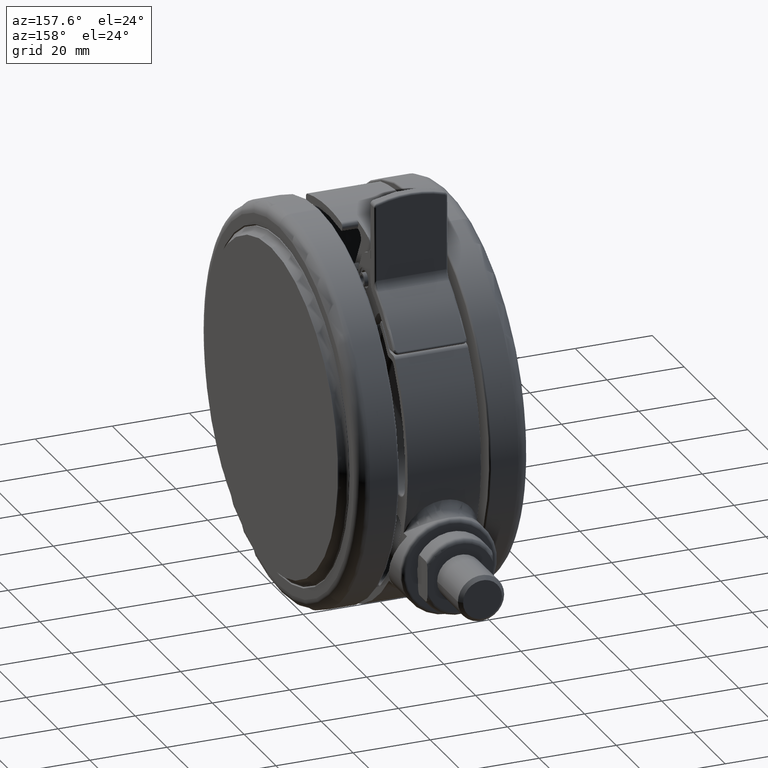
[diagram: clean part render]
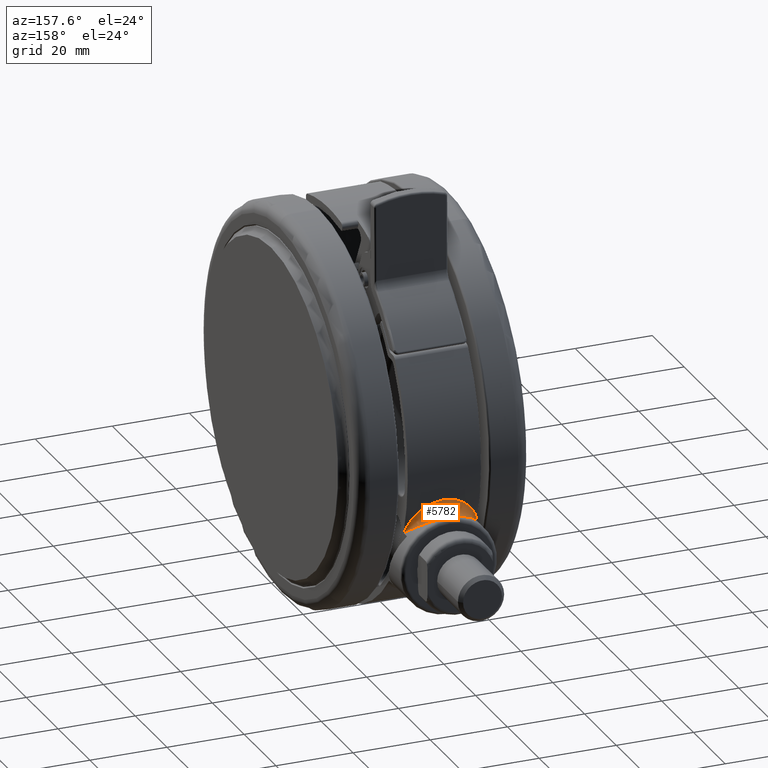
[diagram: same view with one face highlighted and labeled with its STEP entity id]
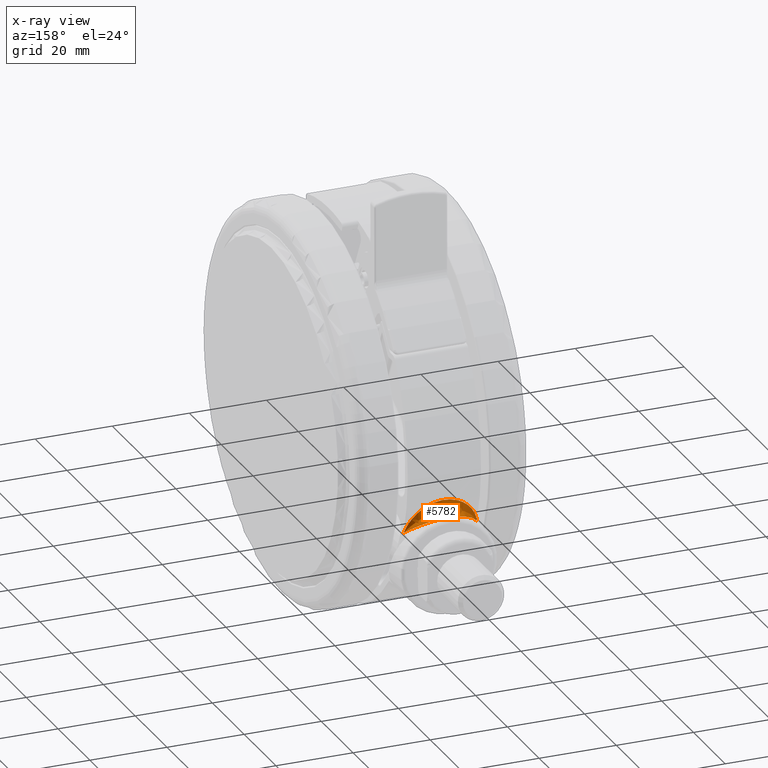
[diagram: x-ray of the same camera — body ghosted, the highlighted face saturated]
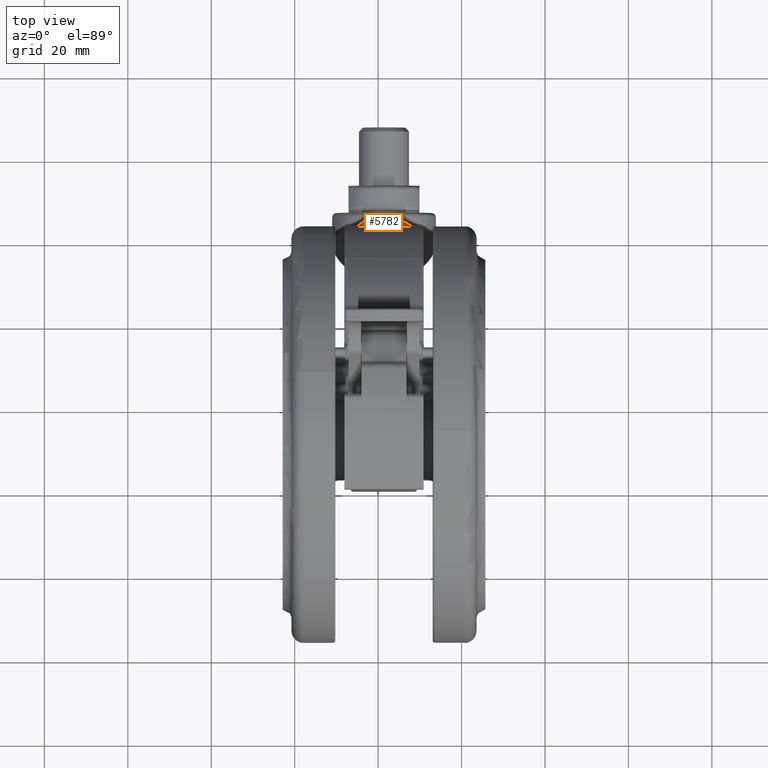
[diagram: same view with one face highlighted and labeled with its STEP entity id]
A machine part, auxiliary view. The second image highlights one B-rep face of the part: STEP entity #5782.
The next image is the same camera in x-ray: the body ghosted, the highlighted face saturated — about 0% of this face is hidden behind the body in this view.
A second angle (top view) of the same face is appended — the face is thin or edge-on in the first view.
In plain terms, the highlighted face is a freeform B-spline surface patch.
Its self-contained STEP definition (entity closure, byte-faithful):
#13 = CARTESIAN_POINT ( 'NONE',  ( -11.69894955959421300, -48.72257818569204300, -26.56930081837448700 ) ) ;
#193 = CARTESIAN_POINT ( 'NONE',  ( -13.92459439986693500, -49.63091264937349900, -16.88928148163575200 ) ) ;
#334 = CARTESIAN_POINT ( 'NONE',  ( -14.04333610865144200, -49.48957025476126100, -31.85810882457602800 ) ) ;
#360 = CARTESIAN_POINT ( 'NONE',  ( -11.71877487653341500, -52.06191361083290300, -26.67602985050812600 ) ) ;
#489 = CARTESIAN_POINT ( 'NONE',  ( -12.56770290114753400, -51.11979242885560400, -29.36035146459909500 ) ) ;
#1302 = CARTESIAN_POINT ( 'NONE',  ( -11.71496968621212500, -52.06676256314960200, -21.93982029699283800 ) ) ;
#1338 = ORIENTED_EDGE ( 'NONE', *, *, #12191, .F. ) ;
#1472 = CARTESIAN_POINT ( 'NONE',  ( -12.94386997800127400, -50.71069343732430200, -18.46608445041886200 ) ) ;
#1634 = CARTESIAN_POINT ( 'NONE',  ( -15.24687865362074400, -48.13344829595043000, -15.36702184867200500 ) ) ;
#2551 = CARTESIAN_POINT ( 'NONE',  ( -15.87596159536404400, -47.41259161259300500, -14.79999999999995100 ) ) ;
#2714 = CARTESIAN_POINT ( 'NONE',  ( -12.23713080903154800, -48.47954070428588100, -16.36540159506102700 ) ) ;
#2884 = CARTESIAN_POINT ( 'NONE',  ( -9.732566719437031100, -49.04374208781965200, -18.85689690082477900 ) ) ;
#3046 = CARTESIAN_POINT ( 'NONE',  ( -8.355177393604634500, -49.29698517889038800, -21.81060116089880900 ) ) ;
#3215 = CARTESIAN_POINT ( 'NONE',  ( -8.312355723238402700, -49.30427625043405000, -26.63792995606967700 ) ) ;
#3353 = CARTESIAN_POINT ( 'NONE',  ( -11.26193435889563500, -48.71720170788730500, -17.11327036598812200 ) ) ;
#3370 = CARTESIAN_POINT ( 'NONE',  ( -9.605146744520169500, -49.06897655943481600, -29.55040244303826900 ) ) ;
#3505 = CARTESIAN_POINT ( 'NONE',  ( -9.722570157017195000, -49.05165460912599700, -29.82981517340078900 ) ) ;
#3537 = CARTESIAN_POINT ( 'NONE',  ( -12.60934466368321000, -48.38419553531554800, -32.47167288838864600 ) ) ;
#3677 = CARTESIAN_POINT ( 'NONE',  ( -13.06327831876326200, -48.29893043449940400, -18.22513518628305800 ) ) ;
#3705 = CARTESIAN_POINT ( 'NONE',  ( -14.90825335206542100, -47.72821061239162100, -33.54405484507405800 ) ) ;
#3849 = CARTESIAN_POINT ( 'NONE',  ( -12.28138429567061800, -48.53842614323701100, -28.74726169468716500 ) ) ;
#4003 = CARTESIAN_POINT ( 'NONE',  ( -13.18919661153685400, -50.44099948665370200, -18.00878122102804100 ) ) ;
#4134 = CARTESIAN_POINT ( 'NONE',  ( -13.95260713755128100, -49.59116632456275700, -31.73644243655735800 ) ) ;
#4158 = CARTESIAN_POINT ( 'NONE',  ( -12.35657142087371500, -51.35004324201640500, -28.94091243946785100 ) ) ;
#4300 = CARTESIAN_POINT ( 'NONE',  ( -12.30025125845968300, -51.41416647566705200, -28.70695115752583200 ) ) ;
#5127 = CARTESIAN_POINT ( 'NONE',  ( -11.84011506767321400, -51.92794611493748400, -21.40379031166991900 ) ) ;
#5279 = CARTESIAN_POINT ( 'NONE',  ( -13.30404741046894700, -50.31547237914458000, -17.82724679447087400 ) ) ;
#5440 = CARTESIAN_POINT ( 'NONE',  ( -15.87596159536404400, -47.41259161259300500, -14.79999999999995100 ) ) ;
#5782 = ADVANCED_FACE ( 'NONE', ( #46294 ), #14597, .T. ) ;
#6373 = CARTESIAN_POINT ( 'NONE',  ( -14.87000690518328500, -47.74020521104201700, -15.06531160233777900 ) ) ;
#6526 = CARTESIAN_POINT ( 'NONE',  ( -11.91106185796878600, -48.56067353279153300, -16.59974122800459600 ) ) ;
#6694 = CARTESIAN_POINT ( 'NONE',  ( -9.537214629438711500, -49.08200374227934800, -19.15264525107448900 ) ) ;
#6864 = CARTESIAN_POINT ( 'NONE',  ( -8.248309205127165800, -49.31497360007483600, -22.23948520582682400 ) ) ;
#6991 = CARTESIAN_POINT ( 'NONE',  ( -14.92623078096261600, -47.73060607715920200, -15.01745032161541200 ) ) ;
#7019 = CARTESIAN_POINT ( 'NONE',  ( -8.501709769612183700, -49.27195014164438200, -27.27388059187315200 ) ) ;
#7162 = CARTESIAN_POINT ( 'NONE',  ( -9.731473301614384400, -49.04982101814410800, -18.74926271114094000 ) ) ;
#7185 = CARTESIAN_POINT ( 'NONE',  ( -10.02032244934062700, -48.98571902529922500, -30.12778448271095400 ) ) ;
#7323 = CARTESIAN_POINT ( 'NONE',  ( -11.26045484034769300, -48.71751336387360000, -31.48367110619636800 ) ) ;
#7342 = CARTESIAN_POINT ( 'NONE',  ( -12.92148500888368200, -48.30152091922038000, -32.65572641968056900 ) ) ;
#7389 = VERTEX_POINT ( 'NONE', #23598 ) ;
#7482 = CARTESIAN_POINT ( 'NONE',  ( -12.28854762439137000, -48.53650204631259200, -19.83575079229146400 ) ) ;
#7497 = CARTESIAN_POINT ( 'NONE',  ( -15.87596159536404800, -47.41259161259300500, -33.79999999999994700 ) ) ;
#7631 = CARTESIAN_POINT ( 'NONE',  ( -13.06208013118732800, -48.29925234463334500, -30.37233565374528900 ) ) ;
#7792 = CARTESIAN_POINT ( 'NONE',  ( -12.36447117563347600, -51.34812842374229500, -19.64129289126812900 ) ) ;
#7933 = CARTESIAN_POINT ( 'NONE',  ( -13.87006486777141000, -49.68350579136884400, -31.62392383936940400 ) ) ;
#7956 = CARTESIAN_POINT ( 'NONE',  ( -13.18787941922449600, -50.44132482632141300, -30.58858709497935300 ) ) ;
#8103 = CARTESIAN_POINT ( 'NONE',  ( -12.07060582586896800, -51.66855855892639900, -28.04082957094923100 ) ) ;
#8908 = CARTESIAN_POINT ( 'NONE',  ( -11.87415706030120600, -51.89020425943805000, -21.26359312755701900 ) ) ;
#9074 = CARTESIAN_POINT ( 'NONE',  ( -13.91721893550443700, -49.63917646210447300, -16.89873617722571100 ) ) ;
#10142 = CARTESIAN_POINT ( 'NONE',  ( -13.81252283401269500, -48.05528693359809700, -15.47853473350856000 ) ) ;
#10323 = CARTESIAN_POINT ( 'NONE',  ( -11.47433446817963300, -48.66610014546562700, -16.94337545923290000 ) ) ;
#10493 = CARTESIAN_POINT ( 'NONE',  ( -9.308132508066428600, -49.12619597347290300, -19.52048931387566500 ) ) ;
#10645 = CARTESIAN_POINT ( 'NONE',  ( -8.076061289403698500, -49.34359494985753300, -23.11399999178327000 ) ) ;
#10818 = CARTESIAN_POINT ( 'NONE',  ( -8.626282406765575700, -49.25025803934271100, -27.62137122240734400 ) ) ;
#10954 = CARTESIAN_POINT ( 'NONE',  ( -8.466922184788623800, -49.27838215784530000, -21.37859359223575200 ) ) ;
#10975 = CARTESIAN_POINT ( 'NONE',  ( -10.31147876870526400, -48.92522188995408800, -30.48792301766544500 ) ) ;
#11109 = CARTESIAN_POINT ( 'NONE',  ( -12.56581440002579500, -48.39760967478000700, -32.45872537504006100 ) ) ;
#11134 = CARTESIAN_POINT ( 'NONE',  ( -12.99686256038361200, -48.28127802616094000, -32.69827883304446200 ) ) ;
#11266 = CARTESIAN_POINT ( 'NONE',  ( -11.69956199842898700, -48.72242174444337300, -22.02642232607604500 ) ) ;
#11419 = CARTESIAN_POINT ( 'NONE',  ( -15.87596159536404800, -47.41259161259300500, -33.79999999999994700 ) ) ;
#11443 = CARTESIAN_POINT ( 'NONE',  ( -13.77257087980995600, -48.08233822477019000, -31.50449683879090700 ) ) ;
#11605 = CARTESIAN_POINT ( 'NONE',  ( -11.71944669914193500, -52.06177854349159900, -21.91949538303779100 ) ) ;
#11735 = CARTESIAN_POINT ( 'NONE',  ( -13.53786252425319100, -50.05369773256683900, -31.14415036155773800 ) ) ;
#11754 = CARTESIAN_POINT ( 'NONE',  ( -13.91527021464021600, -49.63357968840340100, -31.69802064135370000 ) ) ;
#11892 = CARTESIAN_POINT ( 'NONE',  ( -11.94116931008725000, -51.81279284159317200, -27.59363480515344200 ) ) ;
#12191 = EDGE_CURVE ( 'NONE', #18308, #7389, #21223, .T. ) ;
#12702 = CARTESIAN_POINT ( 'NONE',  ( -12.03270311118254600, -51.71462763008992900, -20.67673076583624700 ) ) ;
#12859 = CARTESIAN_POINT ( 'NONE',  ( -14.20315738760782100, -49.31826586636828600, -16.53649438928169200 ) ) ;
#13932 = CARTESIAN_POINT ( 'NONE',  ( -13.22791425003091500, -48.21854316301063600, -15.76811022344935500 ) ) ;
#14094 = CARTESIAN_POINT ( 'NONE',  ( -10.96234566935812700, -48.78358005740575000, -17.41041749162037200 ) ) ;
#14258 = CARTESIAN_POINT ( 'NONE',  ( -8.971389277907214000, -49.18860172343679000, -20.16309993510730400 ) ) ;
#14426 = CARTESIAN_POINT ( 'NONE',  ( -8.018662412042557400, -49.35282213983835900, -24.58414942972734700 ) ) ;
#14594 = CARTESIAN_POINT ( 'NONE',  ( -8.785222561514233400, -49.22226507604543900, -28.02845073513601500 ) ) ;
#14597 =( BOUNDED_SURFACE ( )  B_SPLINE_SURFACE ( 2, 3, ( 
 ( #37160, #6991, #22154, #48527, #25932, #3353, #29735, #7162, #33492, #10954, #37325, #14722, #41109, #18526, #44893, #22319, #48710, #26089, #3505, #29910, #7323, #33651, #11109, #37491, #14888, #41254 ),
 ( #18692, #45063, #22483, #48864, #26256, #3677, #30060, #7482, #33820, #11266, #37642, #15064, #41417, #18855, #45219, #22648, #13, #26429, #3849, #30217, #7631, #33979, #11443, #37801, #15215, #41595 ),
 ( #19018, #45372, #22808, #193, #26581, #4003, #30380, #7792, #34136, #11605, #37966, #15373, #41754, #19193, #45527, #22967, #360, #26757, #4158, #30537, #7956, #34303, #11754, #38129, #15537, #41915 ) ),
 .UNSPECIFIED., .F., .F., .F. ) 
 B_SPLINE_SURFACE_WITH_KNOTS ( ( 3, 3 ),
 ( 4, 2, 2, 2, 2, 2, 2, 2, 2, 2, 2, 2, 4 ),
 ( 0.0000000000000000000, 1.000000000000000000 ),
 ( 0.0000000000000000000, 0.002708604288160220000, 0.004062906432240330100, 0.005417208576320439900, 0.008125812864480660300, 0.009480115008560760500, 0.01083441715264085900, 0.01218871929672098000, 0.01354302144080110100, 0.01625162572896130000, 0.01760592787304140000, 0.01896023001712154900, 0.02166883430528174900 ),
 .UNSPECIFIED. ) 
 GEOMETRIC_REPRESENTATION_ITEM ( )  RATIONAL_B_SPLINE_SURFACE ( (
 ( 1.000000000000000000, 1.000000000000000000, 1.000000000000000000, 1.000000000000000000, 1.000000000000000000, 1.000000000000000000, 1.000000000000000000, 1.000000000000000000, 1.000000000000000000, 1.000000000000000000, 1.000000000000000000, 1.000000000000000000, 1.000000000000000000, 1.000000000000000000, 1.000000000000000000, 1.000000000000000000, 1.000000000000000000, 1.000000000000000000, 1.000000000000000000, 1.000000000000000000, 1.000000000000000000, 1.000000000000000000, 1.000000000000000000, 1.000000000000000000, 1.000000000000000000, 1.000000000000000000),
 ( 0.6299352844784850100, 0.6289007901915919500, 0.6292469607020270100, 0.6312981193112680000, 0.6322337216566720200, 0.6344428951242199200, 0.6357153212091110100, 0.6396730678029740600, 0.6424856987051169600, 0.6456001408591529600, 0.6464504817787780600, 0.6476135334819650400, 0.6479271342072540100, 0.6479298102577170100, 0.6476187973537330700, 0.6464539568576740400, 0.6456029055641909800, 0.6425019266604790100, 0.6396870137862720200, 0.6357165213607769400, 0.6344449333344980300, 0.6322309746317519300, 0.6312880980359629700, 0.6292188801835710800, 0.6288877618529049600, 0.6299352844784850100),
 ( 1.000000000000000000, 1.000000000000000000, 1.000000000000000000, 1.000000000000000000, 1.000000000000000000, 1.000000000000000000, 1.000000000000000000, 1.000000000000000000, 1.000000000000000000, 1.000000000000000000, 1.000000000000000000, 1.000000000000000000, 1.000000000000000000, 1.000000000000000000, 1.000000000000000000, 1.000000000000000000, 1.000000000000000000, 1.000000000000000000, 1.000000000000000000, 1.000000000000000000, 1.000000000000000000, 1.000000000000000000, 1.000000000000000000, 1.000000000000000000, 1.000000000000000000, 1.000000000000000000) ) ) 
 REPRESENTATION_ITEM ( '' )  SURFACE ( )  );
#14722 = CARTESIAN_POINT ( 'NONE',  ( -8.077264107949893900, -49.34339525339260700, -23.10781726959032800 ) ) ;
#14748 = CARTESIAN_POINT ( 'NONE',  ( -10.42828644374297300, -48.90042348380389100, -30.62298930458125300 ) ) ;
#14888 = CARTESIAN_POINT ( 'NONE',  ( -14.92520795240309500, -47.73094856818060800, -33.58227846906808600 ) ) ;
#14912 = CARTESIAN_POINT ( 'NONE',  ( -13.25205874799575900, -48.21241764011047300, -32.84018465586389400 ) ) ;
#15064 = CARTESIAN_POINT ( 'NONE',  ( -11.52540758493527800, -48.77880273366850600, -23.38213706313442200 ) ) ;
#15215 = CARTESIAN_POINT ( 'NONE',  ( -15.19925385277522700, -47.63918513374925100, -33.22130529689538700 ) ) ;
#15373 = CARTESIAN_POINT ( 'NONE',  ( -11.52793111323451600, -52.28085293360521000, -23.33845047378118700 ) ) ;
#15474 = B_SPLINE_CURVE_WITH_KNOTS ( 'NONE', 3,
 ( #2551, #28933, #6373, #32707, #10142, #36530, #13932, #40321, #17731, #44102, #21522, #47890, #25310, #2714, #29109, #6526, #32875, #10323, #36702, #14094, #40488, #17901, #44276, #21681, #48063, #25478, #2884, #29273, #6694, #33041, #10493, #36866, #14258, #40645, #18064, #44439, #21832, #48220, #25646, #3046, #29426, #6864, #33207, #10645, #37031, #14426, #40815, #18215, #44602, #22010, #48383, #25801, #3215, #29592, #7019, #33366, #10818, #37184, #14594, #40978, #18379, #44753, #22182, #48554, #25952, #3370, #29765, #7185, #33513, #10975, #37353, #14748, #41128, #18551, #44925, #22341, #48725, #26115, #3537, #29927, #7342, #33676, #11134, #37511, #14912, #41279, #18718, #45085, #22503, #48884, #26287, #3705, #30083, #7497 ),
 .UNSPECIFIED., .F., .F.,
 ( 4, 2, 1, 1, 1, 1, 2, 2, 2, 2, 2, 2, 2, 2, 2, 1, 2, 2, 2, 1, 2, 2, 2, 2, 2, 2, 2, 2, 2, 2, 1, 2, 2, 2, 1, 2, 2, 2, 1, 1, 2, 2, 2, 2, 1, 1, 1, 2, 2, 1, 1, 1, 2, 2, 4 ),
 ( 0.0000000000000000000, 0.06249999999999869500, 0.09374999999999812600, 0.1093749999999978800, 0.1171874999999978600, 0.1210937499999978500, 0.1230468749999976500, 0.1249999999999974500, 0.1562499999999964800, 0.1718749999999960600, 0.1874999999999956400, 0.2187499999999948100, 0.2343749999999943100, 0.2499999999999938100, 0.2812499999999927300, 0.2968749999999921200, 0.3046874999999919000, 0.3124999999999917300, 0.3437499999999902300, 0.3593749999999895100, 0.3671874999999891800, 0.3749999999999888400, 0.4062499999999879000, 0.4218749999999874500, 0.4374999999999870700, 0.4999999999999855700, 0.5312499999999846800, 0.5468749999999842300, 0.5624999999999837900, 0.5937499999999824600, 0.6093749999999820100, 0.6171874999999819000, 0.6249999999999817900, 0.6562499999999806800, 0.6718749999999799000, 0.6796874999999796800, 0.6874999999999795700, 0.7187499999999793500, 0.7343749999999792400, 0.7421874999999790200, 0.7460937499999791300, 0.7499999999999791300, 0.8124999999999809000, 0.8437499999999819000, 0.8593749999999825700, 0.8671874999999830100, 0.8710937499999830100, 0.8730468749999829000, 0.8749999999999826800, 0.9062499999999866800, 0.9218749999999885600, 0.9296874999999894500, 0.9335937499999899000, 0.9374999999999904500, 1.000000000000000000 ),
 .UNSPECIFIED. ) ;
#15509 = CARTESIAN_POINT ( 'NONE',  ( -13.30412792319275400, -50.31231144251614000, -30.76996087481190800 ) ) ;
#15537 = CARTESIAN_POINT ( 'NONE',  ( -15.28779145275694300, -48.08688682641880500, -33.29701928136832800 ) ) ;
#15676 = CARTESIAN_POINT ( 'NONE',  ( -11.85482620959651000, -51.90933176782072400, -27.25965993440504300 ) ) ;
#16331 = CARTESIAN_POINT ( 'NONE',  ( -11.50160649131325900, -52.31216857828459900, -24.06816994875664400 ) ) ;
#16495 = CARTESIAN_POINT ( 'NONE',  ( -12.37451303787214700, -51.33722765525884300, -19.68300155141816200 ) ) ;
#16653 = CARTESIAN_POINT ( 'NONE',  ( -14.24059847110484400, -49.27620445412056700, -16.48942404525891800 ) ) ;
#17066 = EDGE_LOOP ( 'NONE', ( #45515, #21373, #1338 ) ) ;
#17731 = CARTESIAN_POINT ( 'NONE',  ( -13.09172489581708400, -48.25564149939675200, -15.84150921377820100 ) ) ;
#17901 = CARTESIAN_POINT ( 'NONE',  ( -10.66898641664436700, -48.84856833163895800, -17.70733330539049500 ) ) ;
#18064 = CARTESIAN_POINT ( 'NONE',  ( -8.791999132687198700, -49.22094638092399800, -20.55996419657330400 ) ) ;
#18215 = CARTESIAN_POINT ( 'NONE',  ( -8.074873095910142200, -49.34365843718084200, -25.32162153377080900 ) ) ;
#18308 = VERTEX_POINT ( 'NONE', #29033 ) ;
#18379 = CARTESIAN_POINT ( 'NONE',  ( -9.096688725208478500, -49.16558323610403400, -28.67923038830336000 ) ) ;
#18526 = CARTESIAN_POINT ( 'NONE',  ( -8.018487451279485300, -49.35285056757081200, -24.88093950988513800 ) ) ;
#18551 = CARTESIAN_POINT ( 'NONE',  ( -10.84037152324910400, -48.81214462405450400, -31.08660274415763100 ) ) ;
#18692 = CARTESIAN_POINT ( 'NONE',  ( -15.87596159536401800, -47.41259161259301200, -14.79999999999994600 ) ) ;
#18718 = CARTESIAN_POINT ( 'NONE',  ( -14.01472206169489400, -47.99599208364403300, -33.19900275548463500 ) ) ;
#18855 = CARTESIAN_POINT ( 'NONE',  ( -11.49970457743652300, -48.78724806324978400, -24.74702136546983800 ) ) ;
#19018 = CARTESIAN_POINT ( 'NONE',  ( -15.87596159536404400, -47.41259161259300500, -14.79999999999995100 ) ) ;
#19193 = CARTESIAN_POINT ( 'NONE',  ( -11.49967475666621300, -52.31402160162811300, -24.76849960592375400 ) ) ;
#19324 = CARTESIAN_POINT ( 'NONE',  ( -13.13777572757148200, -50.49552671503390400, -30.48667920537178900 ) ) ;
#19354 = EDGE_CURVE ( 'NONE', #46550, #18308, #15474, .T. ) ;
#19481 = CARTESIAN_POINT ( 'NONE',  ( -11.49999999999996400, -52.31332033485685400, -25.23639795241561900 ) ) ;
#19830 = CARTESIAN_POINT ( 'NONE',  ( -11.49999999749908100, -52.31395312412913500, -24.29999999998277400 ) ) ;
#20139 = CARTESIAN_POINT ( 'NONE',  ( -11.52277463258130800, -52.28729937744774500, -23.48435005713312800 ) ) ;
#20298 = CARTESIAN_POINT ( 'NONE',  ( -12.79025391987330100, -50.87949791767891100, -18.76871594240802600 ) ) ;
#20453 = CARTESIAN_POINT ( 'NONE',  ( -14.40103564270672500, -49.09549660091035900, -16.29210051227531900 ) ) ;
#21223 = B_SPLINE_CURVE_WITH_KNOTS ( 'NONE', 3,
 ( #11419, #34117, #45510, #22940, #334, #26732, #4134, #30513, #7933, #34280, #11735, #38105, #15509, #41894, #19324, #45665, #23096, #489, #26889, #4300, #30670, #8103, #34448, #11892, #38265, #15676, #42056, #19481, #45824 ),
 .UNSPECIFIED., .F., .F.,
 ( 4, 2, 2, 2, 1, 1, 2, 2, 2, 1, 2, 2, 2, 2, 2, 4 ),
 ( 0.0000000000000000000, 0.1249044116934842400, 0.1405174631551697500, 0.1444207260205908100, 0.1483239888860118900, 0.1561305146168534800, 0.1873566175402194800, 0.2029696690019026400, 0.2185827204635857600, 0.2498088233869517300, 0.2810349263103177300, 0.3122610292336836500, 0.3434871321570496200, 0.3591001836187324700, 0.3747132350804152600, 0.4996176467738759300 ),
 .UNSPECIFIED. ) ;
#21373 = ORIENTED_EDGE ( 'NONE', *, *, #21701, .F. ) ;
#21522 = CARTESIAN_POINT ( 'NONE',  ( -13.05232849073604100, -48.26631283782620600, -15.86314272779066100 ) ) ;
#21681 = CARTESIAN_POINT ( 'NONE',  ( -10.29062552948406600, -48.92995664342158300, -18.12523087480145600 ) ) ;
#21701 = EDGE_CURVE ( 'NONE', #7389, #46550, #34502, .T. ) ;
#21832 = CARTESIAN_POINT ( 'NONE',  ( -8.709136586245433500, -49.23567503686726400, -20.76019017789627000 ) ) ;
#22010 = CARTESIAN_POINT ( 'NONE',  ( -8.134827068306869100, -49.33381242785768700, -25.76430922666530100 ) ) ;
#22154 = CARTESIAN_POINT ( 'NONE',  ( -13.96100197065803300, -48.02088478928380500, -15.35942082535141900 ) ) ;
#22182 = CARTESIAN_POINT ( 'NONE',  ( -9.306094520549786300, -49.12634734241974100, -29.05917535852316600 ) ) ;
#22319 = CARTESIAN_POINT ( 'NONE',  ( -8.299843091087703700, -49.30644489201860400, -26.64510576718228700 ) ) ;
#22341 = CARTESIAN_POINT ( 'NONE',  ( -11.87402812652904600, -48.57010727266593600, -31.97116744350796200 ) ) ;
#22483 = CARTESIAN_POINT ( 'NONE',  ( -14.59119605007004400, -47.82983197490396100, -16.02026568392371100 ) ) ;
#22503 = CARTESIAN_POINT ( 'NONE',  ( -14.31836623910716500, -47.90600598987015200, -33.32128758053347200 ) ) ;
#22648 = CARTESIAN_POINT ( 'NONE',  ( -11.62398867485688700, -48.74673622737741100, -26.11742565452724600 ) ) ;
#22808 = CARTESIAN_POINT ( 'NONE',  ( -14.71888397906043600, -48.73944435086090000, -15.88328607660129100 ) ) ;
#22940 = CARTESIAN_POINT ( 'NONE',  ( -14.10475571445409800, -49.42071337230314800, -31.93835027293129900 ) ) ;
#22967 = CARTESIAN_POINT ( 'NONE',  ( -11.63640790917285500, -52.15503135578890000, -26.20353013703159900 ) ) ;
#23096 = CARTESIAN_POINT ( 'NONE',  ( -12.75964830223330500, -50.90975963127342400, -29.78305549603761200 ) ) ;
#23598 = CARTESIAN_POINT ( 'NONE',  ( -11.49999999749908100, -52.31395312412913500, -24.29999999998277400 ) ) ;
#23904 = CARTESIAN_POINT ( 'NONE',  ( -11.63317884103796700, -52.15973736451479000, -22.41859875629932800 ) ) ;
#24055 = CARTESIAN_POINT ( 'NONE',  ( -12.86599494790271200, -50.79623484116525800, -18.61781978714705200 ) ) ;
#24226 = CARTESIAN_POINT ( 'NONE',  ( -14.82547161867747600, -48.61404563628273200, -15.80768953879781500 ) ) ;
#25310 = CARTESIAN_POINT ( 'NONE',  ( -12.57159945773513200, -48.39429549459020300, -16.14219996436783300 ) ) ;
#25478 = CARTESIAN_POINT ( 'NONE',  ( -9.856165726932186300, -49.01901162785025400, -18.68418919719844200 ) ) ;
#25646 = CARTESIAN_POINT ( 'NONE',  ( -8.478434126323676900, -49.27598911022435900, -21.38583015923825700 ) ) ;
#25801 = CARTESIAN_POINT ( 'NONE',  ( -8.243498477780312000, -49.31579789955633000, -26.35069853071141200 ) ) ;
#25932 = CARTESIAN_POINT ( 'NONE',  ( -12.12480881861265500, -48.50964768850769800, -16.42543628262344800 ) ) ;
#25952 = CARTESIAN_POINT ( 'NONE',  ( -9.417766835107656200, -49.10506210540244600, -29.24740129616219200 ) ) ;
#26089 = CARTESIAN_POINT ( 'NONE',  ( -9.106363828625374500, -49.16565846265989800, -28.84622831609903000 ) ) ;
#26115 = CARTESIAN_POINT ( 'NONE',  ( -12.43580587061352300, -48.42896374635093800, -32.36073360932683600 ) ) ;
#26256 = CARTESIAN_POINT ( 'NONE',  ( -13.52962202736375900, -48.15666413225817200, -17.45253400127907300 ) ) ;
#26287 = CARTESIAN_POINT ( 'NONE',  ( -14.41188964882106100, -47.87795282646097700, -33.35726746754305300 ) ) ;
#26429 = CARTESIAN_POINT ( 'NONE',  ( -11.99309805484112700, -48.62887403193683900, -27.89670584188077000 ) ) ;
#26581 = CARTESIAN_POINT ( 'NONE',  ( -13.67006857673729500, -49.91344016275390100, -17.24695665548655300 ) ) ;
#26732 = CARTESIAN_POINT ( 'NONE',  ( -13.96794916017626800, -49.57398986187620700, -31.75711681887041100 ) ) ;
#26757 = CARTESIAN_POINT ( 'NONE',  ( -12.04102921346621500, -51.70051586591040400, -28.05886302782105100 ) ) ;
#26889 = CARTESIAN_POINT ( 'NONE',  ( -12.38660787738748500, -51.31884275103292500, -28.92965412402938700 ) ) ;
#27016 = CARTESIAN_POINT ( 'NONE',  ( -15.87596159536404400, -47.41259161259300500, -14.79999999999995100 ) ) ;
#27705 = CARTESIAN_POINT ( 'NONE',  ( -11.83381134435850300, -51.93493560021425300, -21.43036578274967900 ) ) ;
#27871 = CARTESIAN_POINT ( 'NONE',  ( -13.13204433572634000, -50.50422516873212000, -18.11720177862509500 ) ) ;
#28036 = CARTESIAN_POINT ( 'NONE',  ( -15.54995348196903700, -47.78636332586857100, -15.07878972983615100 ) ) ;
#28933 = CARTESIAN_POINT ( 'NONE',  ( -15.36339979999792700, -47.58422136540161800, -14.91735612403010500 ) ) ;
#29033 = CARTESIAN_POINT ( 'NONE',  ( -15.87596159536404800, -47.41259161259300500, -33.79999999999994700 ) ) ;
#29109 = CARTESIAN_POINT ( 'NONE',  ( -12.12731655015847200, -48.50711908405787700, -16.44202973907550500 ) ) ;
#29273 = CARTESIAN_POINT ( 'NONE',  ( -9.614602913273921900, -49.06690294959698700, -19.03378811020713700 ) ) ;
#29426 = CARTESIAN_POINT ( 'NONE',  ( -8.317367950448746300, -49.30337327502358800, -21.95301410343915900 ) ) ;
#29592 = CARTESIAN_POINT ( 'NONE',  ( -8.435313317968594400, -49.28333610653702800, -27.06287991053413600 ) ) ;
#29735 = CARTESIAN_POINT ( 'NONE',  ( -10.85471812329845600, -48.80903321206779600, -17.49568958775259000 ) ) ;
#29765 = CARTESIAN_POINT ( 'NONE',  ( -9.765179823666827000, -49.03744879853281400, -29.78564829701928200 ) ) ;
#29910 = CARTESIAN_POINT ( 'NONE',  ( -10.85221235200763500, -48.80960750359210500, -31.09991181575575000 ) ) ;
#29927 = CARTESIAN_POINT ( 'NONE',  ( -12.81663646489256600, -48.32949947504603500, -32.59533621468482100 ) ) ;
#30060 = CARTESIAN_POINT ( 'NONE',  ( -12.85251772244484400, -48.36324232512617300, -18.62161051900556800 ) ) ;
#30083 = CARTESIAN_POINT ( 'NONE',  ( -15.38674463601175000, -47.57640441831223700, -33.68796985829437300 ) ) ;
#30217 = CARTESIAN_POINT ( 'NONE',  ( -12.85044216801489000, -48.36381689089428400, -29.97468084817641600 ) ) ;
#30380 = CARTESIAN_POINT ( 'NONE',  ( -12.96705499888379600, -50.68490468773799800, -18.40645307652097900 ) ) ;
#30513 = CARTESIAN_POINT ( 'NONE',  ( -13.91948921151357200, -49.62822556859713100, -31.69148710935933300 ) ) ;
#30537 = CARTESIAN_POINT ( 'NONE',  ( -12.96478656386049600, -50.68549987301100400, -30.18968919008902000 ) ) ;
#30670 = CARTESIAN_POINT ( 'NONE',  ( -12.14272197690190100, -51.58847941914341800, -28.26362170280507500 ) ) ;
#31484 = CARTESIAN_POINT ( 'NONE',  ( -11.85361184071263300, -51.91298111664696100, -21.34769804895757900 ) ) ;
#31642 = CARTESIAN_POINT ( 'NONE',  ( -13.66132967603428100, -49.92226014938675900, -17.25999720446913700 ) ) ;
#32707 = CARTESIAN_POINT ( 'NONE',  ( -14.16000573487998800, -47.95367881952663700, -15.33314385121559000 ) ) ;
#32875 = CARTESIAN_POINT ( 'NONE',  ( -11.79931956868254000, -48.58794574202682500, -16.68480290272494000 ) ) ;
#33041 = CARTESIAN_POINT ( 'NONE',  ( -9.500102769116150400, -49.08920019950385000, -19.21099878885673100 ) ) ;
#33207 = CARTESIAN_POINT ( 'NONE',  ( -8.217351989443429300, -49.32013733572174600, -22.38203016977287900 ) ) ;
#33366 = CARTESIAN_POINT ( 'NONE',  ( -8.575472065782522100, -49.25913056431363700, -27.48266982937230600 ) ) ;
#33492 = CARTESIAN_POINT ( 'NONE',  ( -9.112309843289146700, -49.16458773173560100, -19.73083319812665000 ) ) ;
#33513 = CARTESIAN_POINT ( 'NONE',  ( -10.15166670236355500, -48.95874372978551000, -30.29616942673682800 ) ) ;
#33651 = CARTESIAN_POINT ( 'NONE',  ( -12.11684762619429500, -48.51160639655530100, -32.16217354129422300 ) ) ;
#33676 = CARTESIAN_POINT ( 'NONE',  ( -12.96667728393313900, -48.28939349864818100, -32.68129905221754700 ) ) ;
#33820 = CARTESIAN_POINT ( 'NONE',  ( -11.99778609229314500, -48.62765210879212000, -20.68521798852360000 ) ) ;
#33979 = CARTESIAN_POINT ( 'NONE',  ( -13.52283385175502400, -48.15859248913621100, -31.13672799712264100 ) ) ;
#34117 = CARTESIAN_POINT ( 'NONE',  ( -15.23873249321631300, -48.14312943245600700, -33.25506592648418500 ) ) ;
#34136 = CARTESIAN_POINT ( 'NONE',  ( -12.04618951953995400, -51.69938786174531500, -20.52222533445693700 ) ) ;
#34280 = CARTESIAN_POINT ( 'NONE',  ( -13.69162409788194900, -49.88280486545370000, -31.37478121924585400 ) ) ;
#34303 = CARTESIAN_POINT ( 'NONE',  ( -13.66275225951739500, -49.91545822018250800, -31.34198752173399800 ) ) ;
#34448 = CARTESIAN_POINT ( 'NONE',  ( -11.97229571570899000, -51.77806127066806900, -27.70556786157866500 ) ) ;
#34502 = B_SPLINE_CURVE_WITH_KNOTS ( 'NONE', 3,
 ( #19830, #35125, #16331, #42702, #20139, #46467, #23904, #1302, #27705, #5127, #31484, #8908, #35287, #12702, #39088, #16495, #42861, #20298, #46618, #24055, #1472, #27871, #5279, #31642, #9074, #35448, #12859, #39252, #16653, #43013, #20453, #46797, #24226, #1634, #28036, #5440 ),
 .UNSPECIFIED., .F., .F.,
 ( 4, 2, 1, 2, 2, 2, 1, 1, 1, 2, 2, 2, 1, 1, 2, 2, 2, 1, 1, 1, 1, 2, 4 ),
 ( 0.4996176467738759300, 0.5152545953121929800, 0.5308915438505100700, 0.5621654409271438200, 0.6247132350804111000, 0.6286224722149903500, 0.6325317093495694800, 0.6403501836187275300, 0.6559871321570434100, 0.6872610292336751600, 0.7498088233869387700, 0.7576272976560970400, 0.7654457719252553100, 0.7810827204635718600, 0.8123566175402052700, 0.8749044116934725500, 0.8768590302607622800, 0.8788136488280520200, 0.8827228859626310400, 0.8905413602317889800, 0.9061783087701049700, 0.9374522058467366100, 1.000000000000000000 ),
 .UNSPECIFIED. ) ;
#35125 = CARTESIAN_POINT ( 'NONE',  ( -11.49999999999999800, -52.31403237119456400, -24.18277110155803900 ) ) ;
#35287 = CARTESIAN_POINT ( 'NONE',  ( -11.92419819683564000, -51.83475274087167200, -21.06759803929276500 ) ) ;
#35448 = CARTESIAN_POINT ( 'NONE',  ( -14.19658101706507500, -49.32564976504331600, -16.54479768513962800 ) ) ;
#36530 = CARTESIAN_POINT ( 'NONE',  ( -13.42053089178971300, -48.16546859620024900, -15.66823825576164900 ) ) ;
#36702 = CARTESIAN_POINT ( 'NONE',  ( -11.26505823883820800, -48.71489798863203900, -17.12477910645675600 ) ) ;
#36866 = CARTESIAN_POINT ( 'NONE',  ( -9.166331775314319000, -49.15278041083139700, -19.77398912668925500 ) ) ;
#37031 = CARTESIAN_POINT ( 'NONE',  ( -8.019289329098302900, -49.35272027796948900, -23.69971331906350900 ) ) ;
#37160 = CARTESIAN_POINT ( 'NONE',  ( -15.87596159536404400, -47.41259161259300500, -14.79999999999995100 ) ) ;
#37184 = CARTESIAN_POINT ( 'NONE',  ( -8.653125941020364900, -49.24554935337641100, -27.69205665058567700 ) ) ;
#37325 = CARTESIAN_POINT ( 'NONE',  ( -8.300923590921145800, -49.30626246370530200, -21.94903099875960000 ) ) ;
#37353 = CARTESIAN_POINT ( 'NONE',  ( -10.38137605632384300, -48.91040386487623700, -30.56909694725592500 ) ) ;
#37491 = CARTESIAN_POINT ( 'NONE',  ( -13.94977154032915400, -48.02413069536630300, -33.22801620764427400 ) ) ;
#37511 = CARTESIAN_POINT ( 'NONE',  ( -13.01307561546850900, -48.27691037173780600, -32.70734133986923800 ) ) ;
#37642 = CARTESIAN_POINT ( 'NONE',  ( -11.62483102125218100, -48.74651940813533500, -22.47802446434450000 ) ) ;
#37801 = CARTESIAN_POINT ( 'NONE',  ( -14.58091638791417600, -47.83296444718832400, -32.56800101040718000 ) ) ;
#37966 = CARTESIAN_POINT ( 'NONE',  ( -11.63733668149881600, -52.15483841871530800, -22.39169303282189500 ) ) ;
#38105 = CARTESIAN_POINT ( 'NONE',  ( -13.36153814189871100, -50.24889258814813800, -30.86393997359687100 ) ) ;
#38129 = CARTESIAN_POINT ( 'NONE',  ( -14.70814992492221600, -48.74274197383089600, -32.70484736308464600 ) ) ;
#38265 = CARTESIAN_POINT ( 'NONE',  ( -11.88218114830096500, -51.87871731746575700, -27.36951040315998200 ) ) ;
#39088 = CARTESIAN_POINT ( 'NONE',  ( -12.14018767312704700, -51.59585398030736800, -20.34405421971487400 ) ) ;
#39252 = CARTESIAN_POINT ( 'NONE',  ( -14.21810933346962500, -49.30147257499638900, -16.51766362024335400 ) ) ;
#40321 = CARTESIAN_POINT ( 'NONE',  ( -13.13245420760963700, -48.24458555074430400, -15.81930125893349600 ) ) ;
#40488 = CARTESIAN_POINT ( 'NONE',  ( -10.86330823924258800, -48.80572131736755600, -17.50788577239621100 ) ) ;
#40645 = CARTESIAN_POINT ( 'NONE',  ( -8.878357319872156600, -49.20549734907511700, -20.35987061161574700 ) ) ;
#40815 = CARTESIAN_POINT ( 'NONE',  ( -8.032638928675496000, -49.35055750204253400, -24.87907196957118900 ) ) ;
#40978 = CARTESIAN_POINT ( 'NONE',  ( -8.902736459134363400, -49.20120492810745800, -28.29206387379294800 ) ) ;
#41109 = CARTESIAN_POINT ( 'NONE',  ( -8.019255317509596600, -49.35272580419329800, -23.69773527579367900 ) ) ;
#41128 = CARTESIAN_POINT ( 'NONE',  ( -10.45287079307923700, -48.89517395010644000, -30.65091773856324100 ) ) ;
#41254 = CARTESIAN_POINT ( 'NONE',  ( -15.87596159536404800, -47.41259161259300500, -33.79999999999994700 ) ) ;
#41279 = CARTESIAN_POINT ( 'NONE',  ( -13.59759180384085500, -48.11664289550083900, -33.01559382180125400 ) ) ;
#41417 = CARTESIAN_POINT ( 'NONE',  ( -11.50030079670721300, -48.78709559736316200, -23.83656739246215000 ) ) ;
#41595 = CARTESIAN_POINT ( 'NONE',  ( -15.87596159536401800, -47.41259161259301200, -33.79999999999996200 ) ) ;
#41754 = CARTESIAN_POINT ( 'NONE',  ( -11.50033115858895300, -52.31388935244189800, -23.81430264059140000 ) ) ;
#41894 = CARTESIAN_POINT ( 'NONE',  ( -13.19204433223633200, -50.43585695626730800, -30.58093683208779700 ) ) ;
#41915 = CARTESIAN_POINT ( 'NONE',  ( -15.87596159536404800, -47.41259161259300500, -33.79999999999994700 ) ) ;
#42056 = CARTESIAN_POINT ( 'NONE',  ( -11.60569309469759400, -52.18879710953312700, -26.19221807106626100 ) ) ;
#42702 = CARTESIAN_POINT ( 'NONE',  ( -11.50810273875164600, -52.30455322052525000, -23.83514702855822200 ) ) ;
#42861 = CARTESIAN_POINT ( 'NONE',  ( -12.55656313693024200, -51.13670473791536600, -19.24802759421066200 ) ) ;
#43013 = CARTESIAN_POINT ( 'NONE',  ( -14.29350256255330900, -49.21669821868471200, -16.42357982157118800 ) ) ;
#44102 = CARTESIAN_POINT ( 'NONE',  ( -13.06461253536863500, -48.26298888969421300, -15.85637428137181400 ) ) ;
#44276 = CARTESIAN_POINT ( 'NONE',  ( -10.57514200936372400, -48.86896539942897300, -17.80770550592231800 ) ) ;
#44439 = CARTESIAN_POINT ( 'NONE',  ( -8.735911521282890400, -49.23093195619278400, -20.69409834397815500 ) ) ;
#44602 = CARTESIAN_POINT ( 'NONE',  ( -8.092495863851905100, -49.34077391764179800, -25.46916568090965100 ) ) ;
#44753 = CARTESIAN_POINT ( 'NONE',  ( -9.198084914400132200, -49.14676332588585700, -28.87075034718983700 ) ) ;
#44893 = CARTESIAN_POINT ( 'NONE',  ( -8.075725136347244900, -49.34364768385600500, -25.47396553209346200 ) ) ;
#44925 = CARTESIAN_POINT ( 'NONE',  ( -11.23578998477968800, -48.72318217367824600, -31.46151509744029400 ) ) ;
#45063 = CARTESIAN_POINT ( 'NONE',  ( -15.20017193784618400, -47.63887771566295000, -15.37790959256532000 ) ) ;
#45085 = CARTESIAN_POINT ( 'NONE',  ( -14.22675536490989900, -47.93335488715442200, -33.28539844901543900 ) ) ;
#45219 = CARTESIAN_POINT ( 'NONE',  ( -11.52421163280440400, -48.77910902413734100, -25.20381806888279600 ) ) ;
#45372 = CARTESIAN_POINT ( 'NONE',  ( -15.28842562661349500, -48.08620774859640100, -15.30243839728778900 ) ) ;
#45510 = CARTESIAN_POINT ( 'NONE',  ( -14.66747520007878200, -48.78911065928459600, -32.65525344118811500 ) ) ;
#45515 = ORIENTED_EDGE ( 'NONE', *, *, #19354, .F. ) ;
#45527 = CARTESIAN_POINT ( 'NONE',  ( -11.52661374229965600, -52.28112036083560100, -25.24682186136738000 ) ) ;
#45665 = CARTESIAN_POINT ( 'NONE',  ( -12.97173906718730800, -50.67776188288149800, -30.18889834660597100 ) ) ;
#45824 = CARTESIAN_POINT ( 'NONE',  ( -11.49999999749908100, -52.31395312412913500, -24.29999999998277400 ) ) ;
#46294 = FACE_OUTER_BOUND ( 'NONE', #17066, .T. ) ;
#46467 = CARTESIAN_POINT ( 'NONE',  ( -11.55256962503603900, -52.25255311505475200, -23.13018757280832500 ) ) ;
#46550 = VERTEX_POINT ( 'NONE', #27016 ) ;
#46618 = CARTESIAN_POINT ( 'NONE',  ( -12.81470440440005900, -50.85260799995162300, -18.71946213071553100 ) ) ;
#46797 = CARTESIAN_POINT ( 'NONE',  ( -14.62305712172531500, -48.84433677775125900, -16.03011364348464000 ) ) ;
#47890 = CARTESIAN_POINT ( 'NONE',  ( -12.80128056670911400, -48.33411959508936200, -16.00230927903934800 ) ) ;
#48063 = CARTESIAN_POINT ( 'NONE',  ( -10.11085112346546200, -48.96734324824463900, -18.34435179762049000 ) ) ;
#48220 = CARTESIAN_POINT ( 'NONE',  ( -8.573710676462658500, -49.25955326490765900, -21.10593992607850600 ) ) ;
#48383 = CARTESIAN_POINT ( 'NONE',  ( -8.159926931686150900, -49.32967048212775300, -25.91395420910108500 ) ) ;
#48527 = CARTESIAN_POINT ( 'NONE',  ( -12.57584046336081400, -48.39500981126770500, -16.12728308059104500 ) ) ;
#48554 = CARTESIAN_POINT ( 'NONE',  ( -9.379568505365998700, -49.11237209794109800, -29.18410426662248000 ) ) ;
#48710 = CARTESIAN_POINT ( 'NONE',  ( -8.466135983366193300, -49.27850951553540400, -27.21588904319412400 ) ) ;
#48725 = CARTESIAN_POINT ( 'NONE',  ( -12.09428962366213300, -48.51580512870843600, -32.13226552822112600 ) ) ;
#48864 = CARTESIAN_POINT ( 'NONE',  ( -13.78129431519789300, -48.07980936110668300, -17.08310663378630800 ) ) ;
#48884 = CARTESIAN_POINT ( 'NONE',  ( -14.37960405669483200, -47.88766029815366200, -33.34496086948303900 ) ) ;